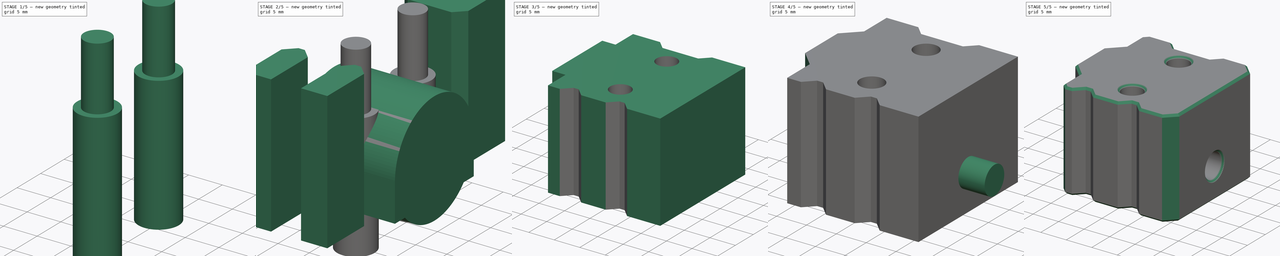
[diagram: build sequence overview — one tinted view per stage of 5, left to right]
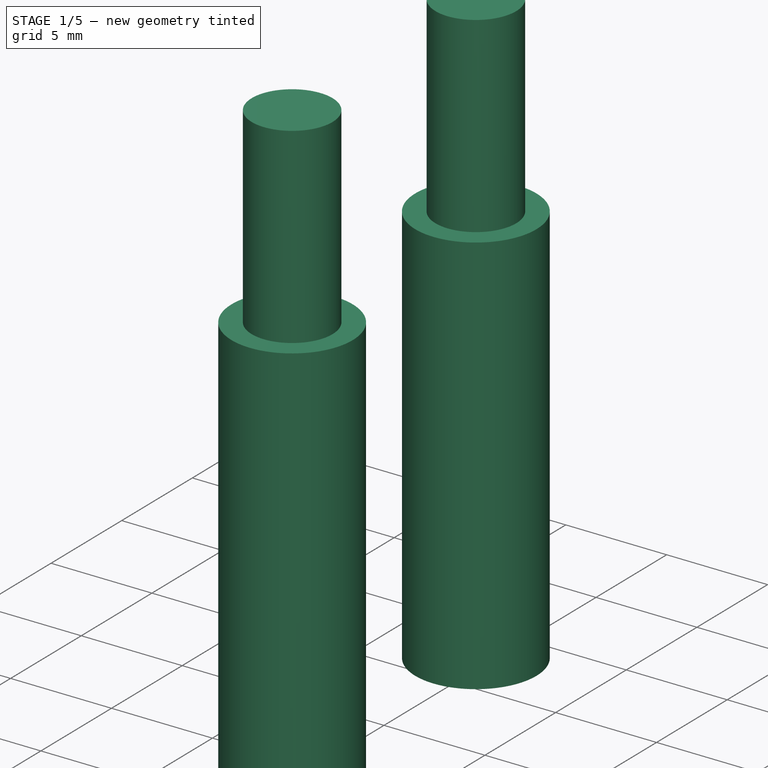
[diagram: stage 1 of 5 — iso view after this stage's code; geometry added in this stage tinted green]
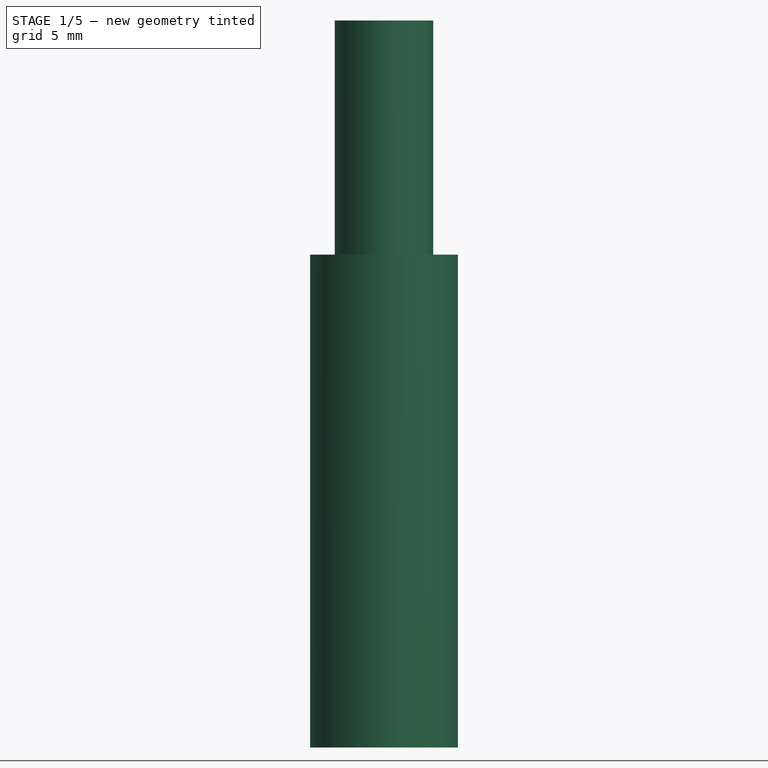
[diagram: stage 1 of 5 — front view after this stage's code; geometry added in this stage tinted green]
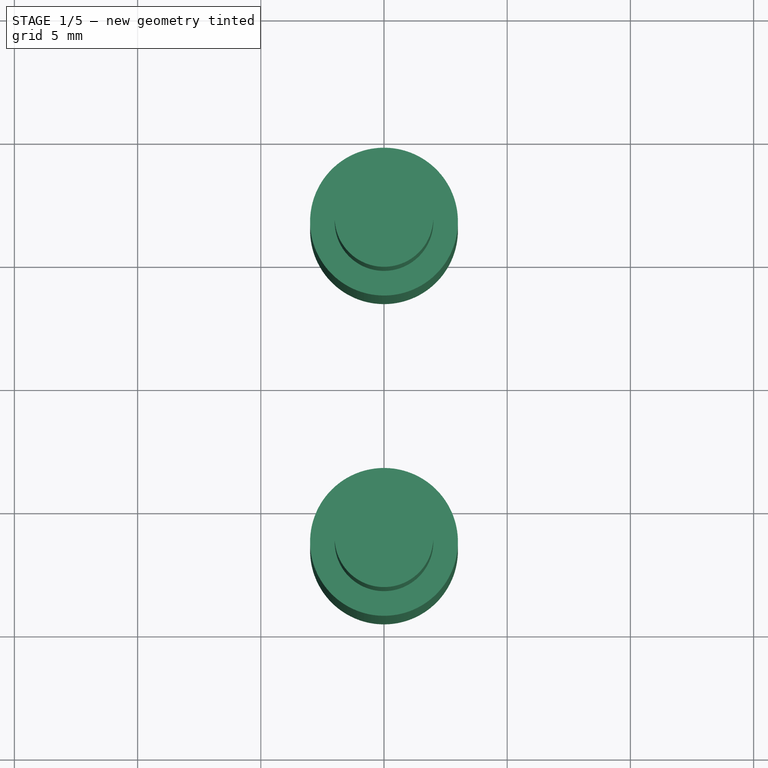
[diagram: stage 1 of 5 — top view after this stage's code; geometry added in this stage tinted green]
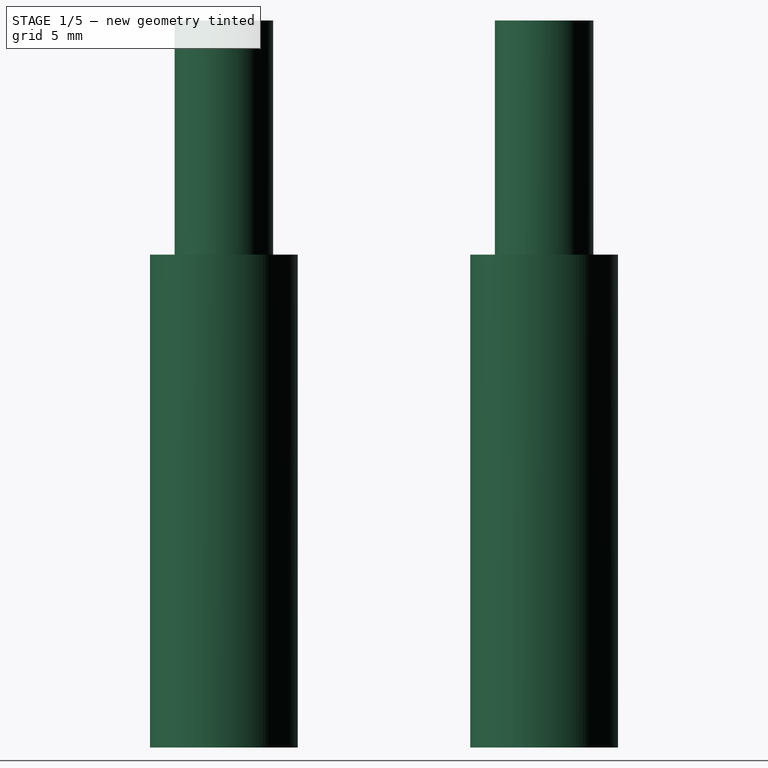
[diagram: stage 1 of 5 — right view after this stage's code; geometry added in this stage tinted green]
FCSTD DOCUMENT  (FreeCAD 0.19R24366 (Git))
Label: idler-housing-flange
License: All rights reserved
LicenseURL: http://en.wikipedia.org/wiki/All_rights_reserved
objects: Part::Cylinder×8, Part::MultiFuse×7, Part::Chamfer×7, Part::Box×6, Part::Cut×4, Part::Refine×1, PartDesign::FeatureBase×1, Sketcher::SketchObject×1, PartDesign::Pad×1, PartDesign::Body×1
note: 38 computed .brp shape members not serialized (recipe doc carries the construction recipe); baked Part::Feature solids carry a one-line shape summary decoded from their .brp

FEATURE [Part::Cylinder] Cylinder020
  Angle = 360
  AttacherType = Attacher::AttachEngine3D
  Height = 20
  Placement = pos=(15,-6.5,-6.5) rot=(0,0,1;0rad)
  Radius = 3
FEATURE [Part::Cylinder] Cylinder018
  Angle = 360
  AttacherType = Attacher::AttachEngine3D
  Height = 10
  Placement = pos=(15,-6.5,13) rot=(0,0,1;0rad)
  Radius = 2
FEATURE [Part::Cylinder] Cylinder019
  Angle = 360
  AttacherType = Attacher::AttachEngine3D
  Height = 10
  Placement = pos=(15,6.5,13) rot=(0,0,1;0rad)
  Radius = 2
FEATURE [Part::MultiFuse] Fusion013005011029006008001003
  Shapes = -> [Cylinder018,Cylinder019]
FEATURE [Part::Cylinder] Cylinder021
  Angle = 360
  AttacherType = Attacher::AttachEngine3D
  Height = 20
  Placement = pos=(15,6.5,-6.5) rot=(0,0,1;0rad)
  Radius = 3
FEATURE [Part::MultiFuse] Fusion
  Shapes = -> [Cylinder021,Cylinder020]
FEATURE [Part::MultiFuse] Fusion013005011029006008001004
  Shapes = -> [Fusion,Fusion013005011029006008001003]
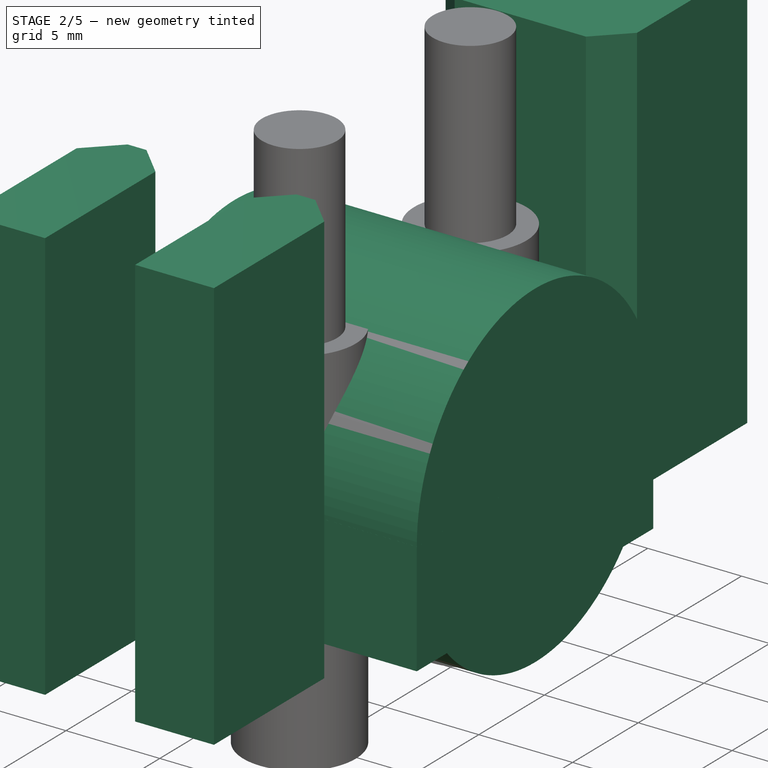
[diagram: stage 2 of 5 — iso view after this stage's code; geometry added in this stage tinted green]
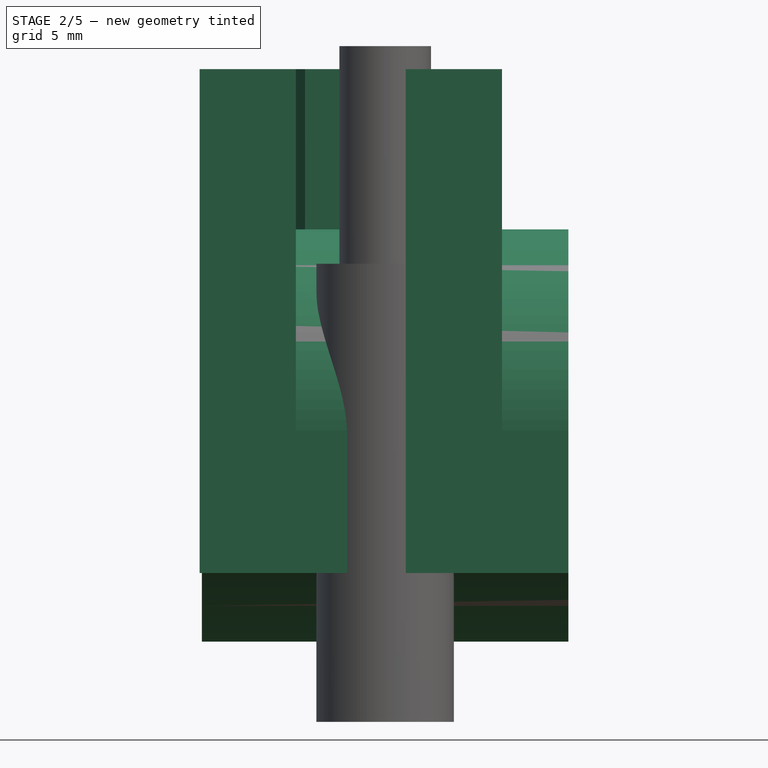
[diagram: stage 2 of 5 — front view after this stage's code; geometry added in this stage tinted green]
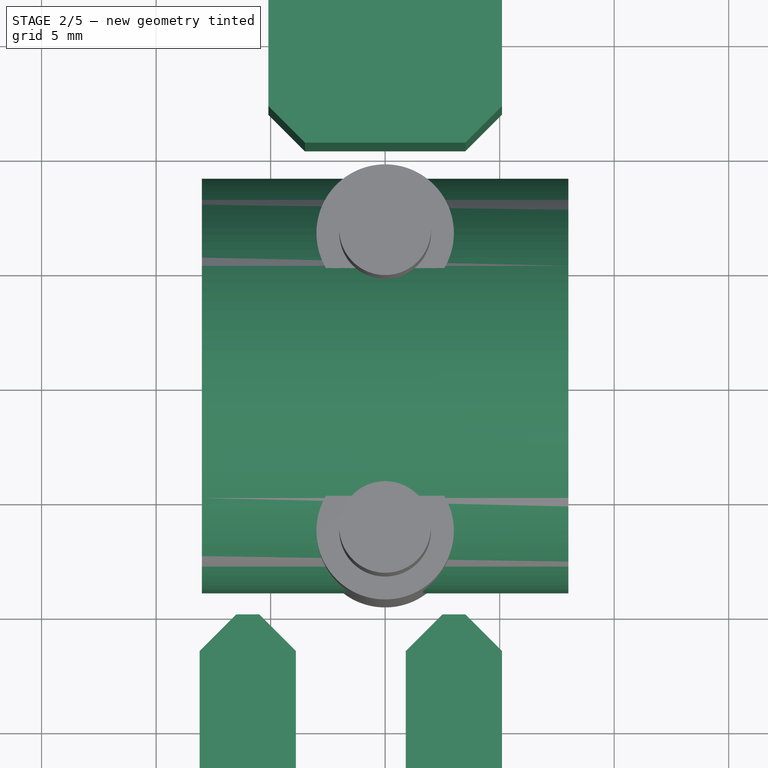
[diagram: stage 2 of 5 — top view after this stage's code; geometry added in this stage tinted green]
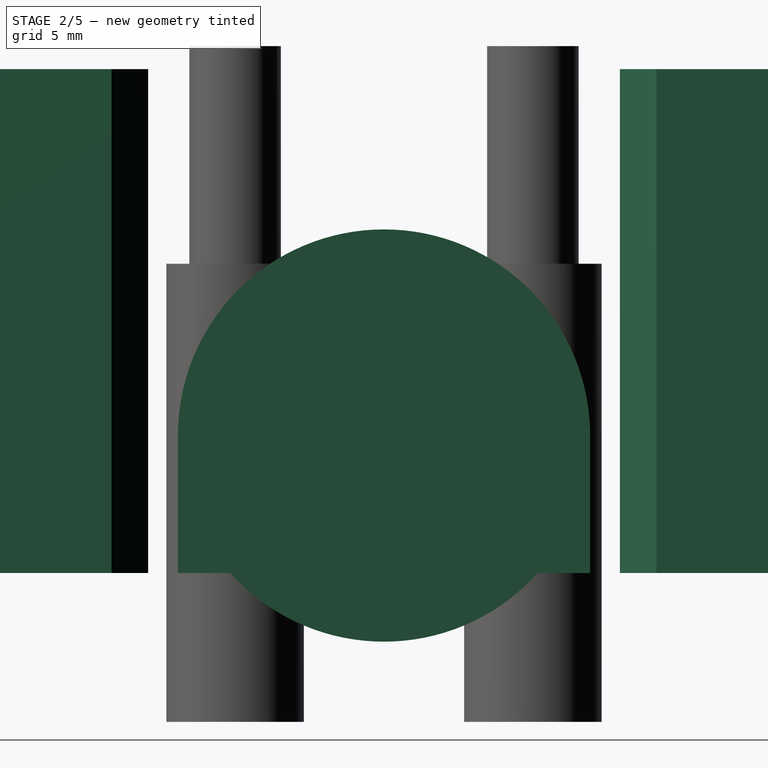
[diagram: stage 2 of 5 — right view after this stage's code; geometry added in this stage tinted green]
FEATURE [Part::Box] Box011  label="Cube011"
  AttacherType = Attacher::AttachEngine3D
  Height = 6
  Length = 16
  Placement = pos=(7,-9,0) rot=(0,0,1;0rad)
  Width = 18
FEATURE [Part::Box] Box014  label="Cube014"
  AttacherType = Attacher::AttachEngine3D
  Height = 22
  Length = 4.2
  Placement = pos=(6.9,-20.3,0) rot=(0,0,1;0rad)
  Width = 10
FEATURE [Part::Box] Box025  label="Cube023"
  AttacherType = Attacher::AttachEngine3D
  Height = 22
  Length = 4.2
  Placement = pos=(15.9,-20.3,0) rot=(0,0,1;0rad)
  Width = 10
FEATURE [Part::Box] Box013  label="Cube013"
  AttacherType = Attacher::AttachEngine3D
  Height = 22
  Length = 10.2
  Placement = pos=(9.9,10.3,0) rot=(0,0,1;0rad)
  Width = 10
FEATURE [Part::MultiFuse] Fusion013005011029006008001002
  Shapes = -> [Box013,Box014,Box025]
FEATURE [Part::Cylinder] Cylinder014
  Angle = 360
  AttacherType = Attacher::AttachEngine3D
  Height = 16
  Placement = pos=(23,0,6) rot=(0,-1,0;1.5708rad)
  Radius = 9
FEATURE [Part::Chamfer] Chamfer003068003
  Base = -> Fusion013005011029006008001002
  Edges = 6 edges r=1.6: [Edge1,Edge5,Edge15,Edge19,Edge27,Edge31]
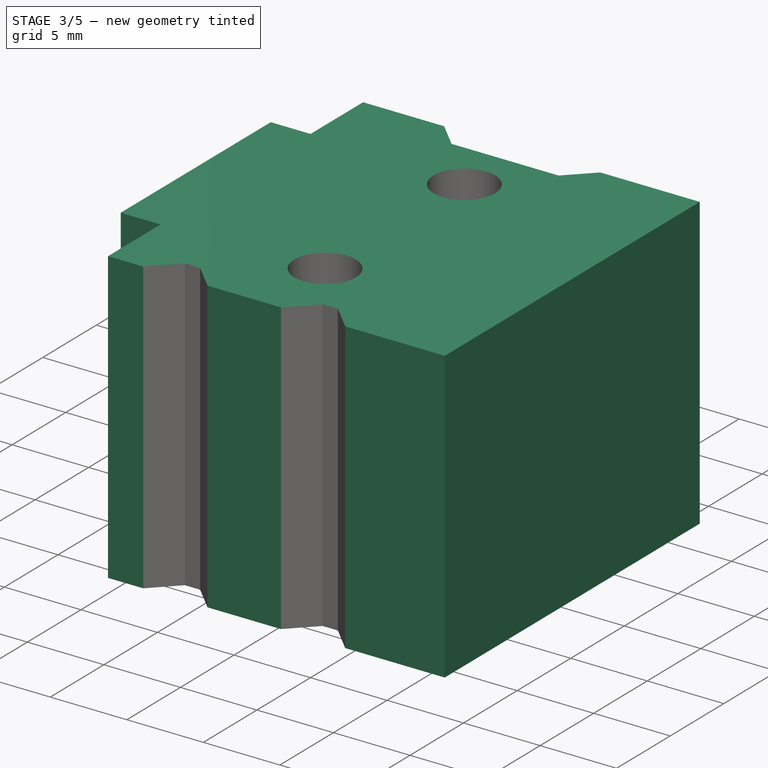
[diagram: stage 3 of 5 — iso view after this stage's code; geometry added in this stage tinted green]
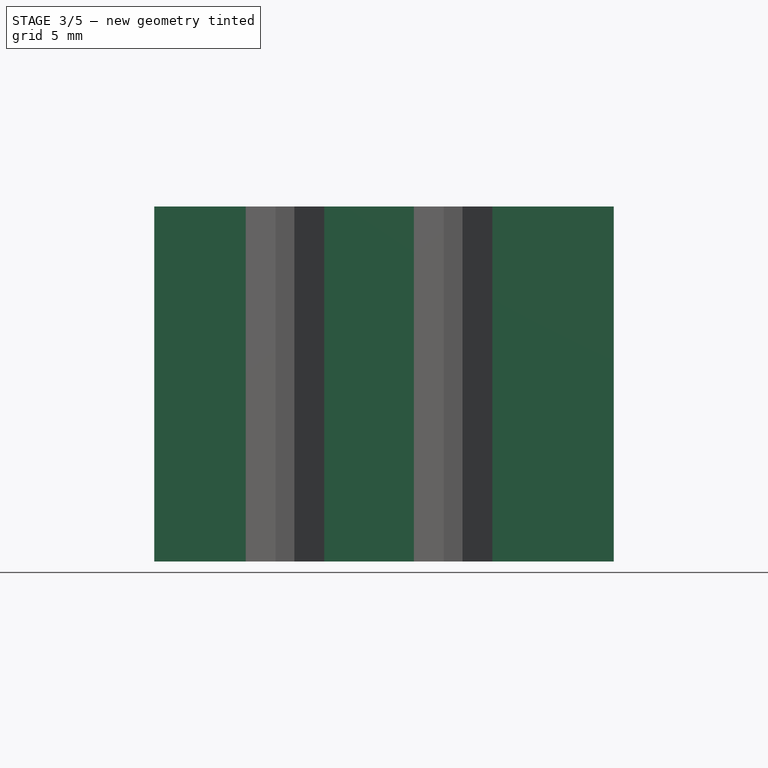
[diagram: stage 3 of 5 — front view after this stage's code; geometry added in this stage tinted green]
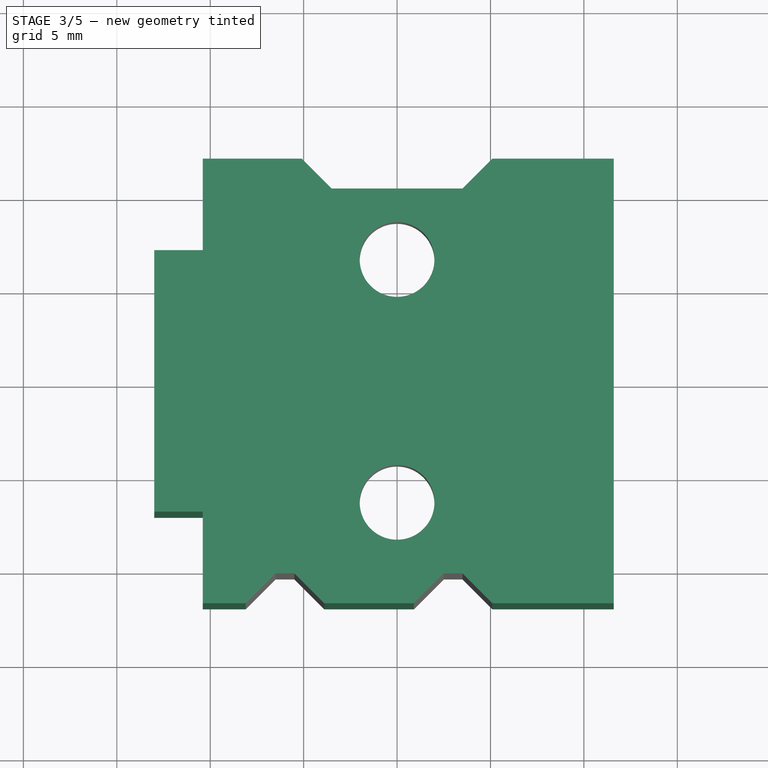
[diagram: stage 3 of 5 — top view after this stage's code; geometry added in this stage tinted green]
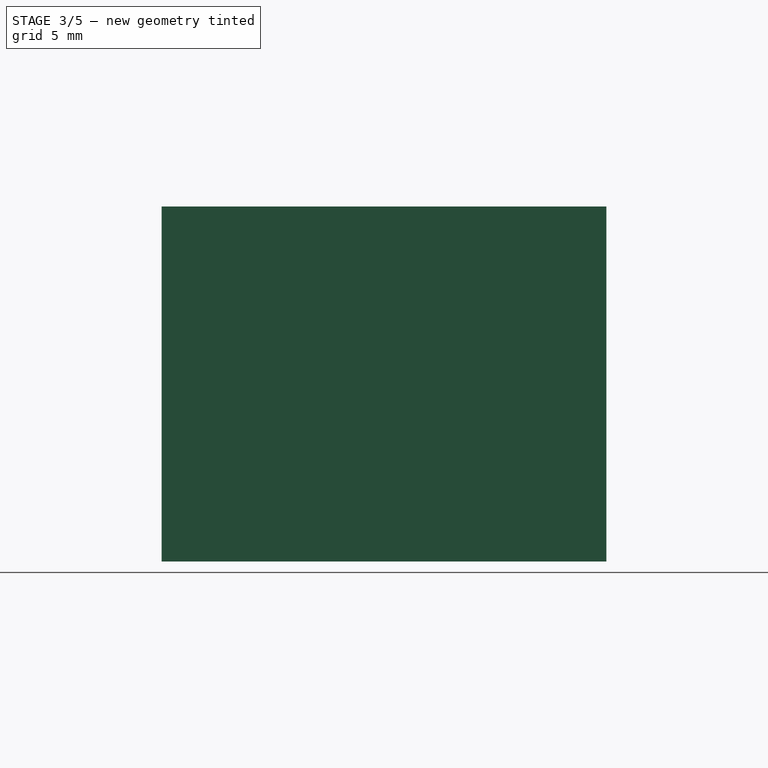
[diagram: stage 3 of 5 — right view after this stage's code; geometry added in this stage tinted green]
FEATURE [Part::Box] Box012  label="Cube012"
  AttacherType = Attacher::AttachEngine3D
  Height = 19
  Length = 22
  Placement = pos=(4.6,-11.9,0) rot=(0,0,1;0rad)
  Width = 23.8
FEATURE [Part::MultiFuse] Fusion013005011004
  Shapes = -> [Cylinder014,Box011]
FEATURE [Part::Box] Box037  label="Cube035"
  AttacherType = Attacher::AttachEngine3D
  Height = 19
  Length = 5
  Placement = pos=(2,-7,0) rot=(0,0,1;0rad)
  Width = 14
FEATURE [Part::Cut] Cut001001036003
  Base = -> Box012
  Tool = -> Chamfer003068003
FEATURE [Part::Cut] Cut001001036004
  Base = -> Cut001001036003
  Tool = -> Fusion013005011004
FEATURE [Part::Cut] Cut
  Base = -> Cut001001036004
  Tool = -> Fusion013005011029006008001004
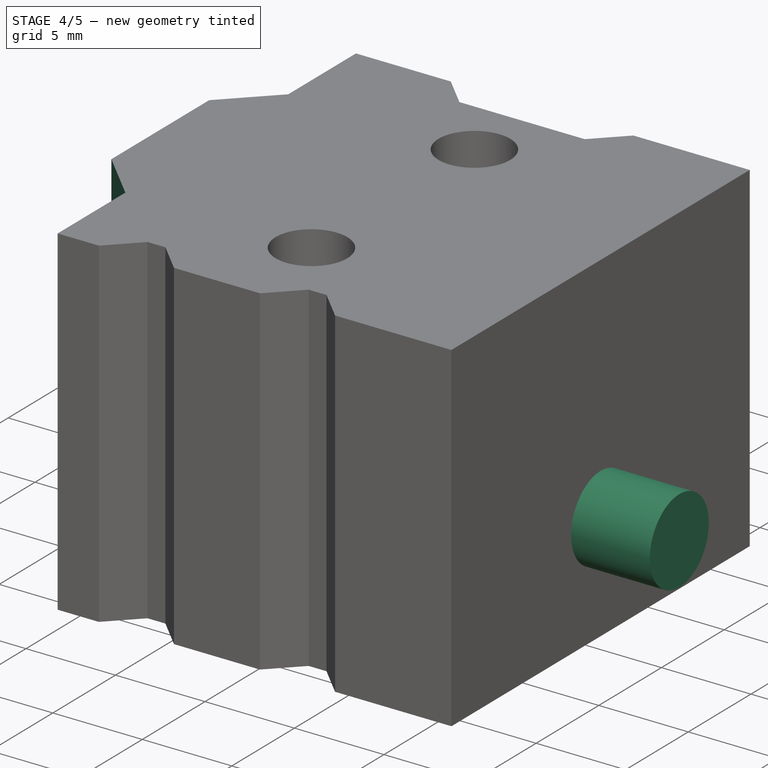
[diagram: stage 4 of 5 — iso view after this stage's code; geometry added in this stage tinted green]
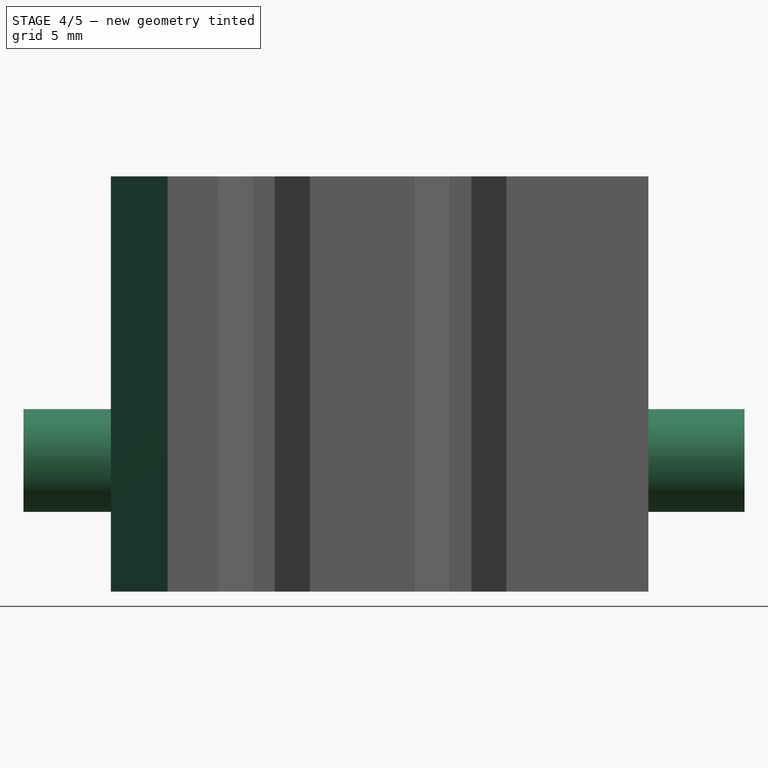
[diagram: stage 4 of 5 — front view after this stage's code; geometry added in this stage tinted green]
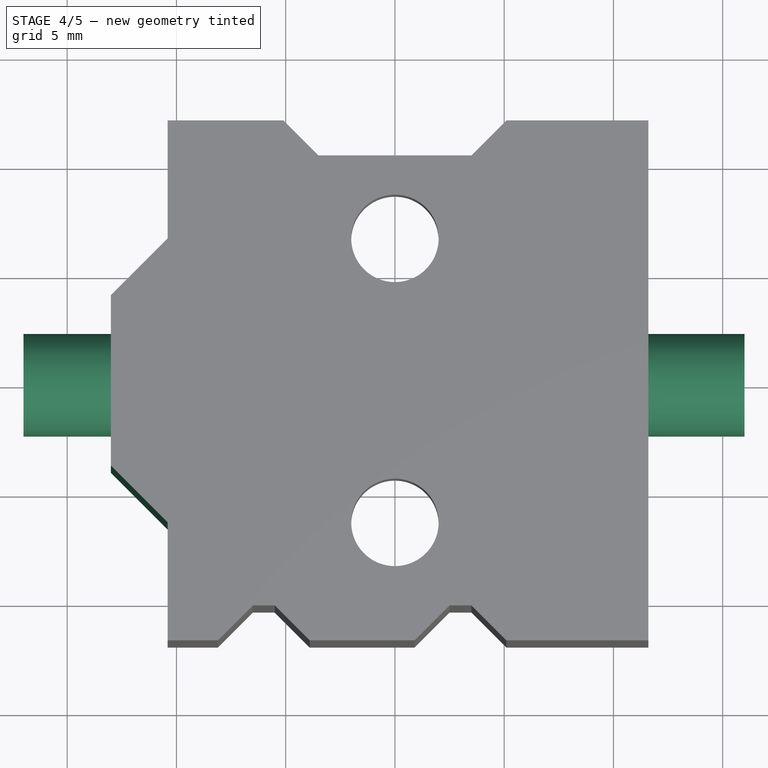
[diagram: stage 4 of 5 — top view after this stage's code; geometry added in this stage tinted green]
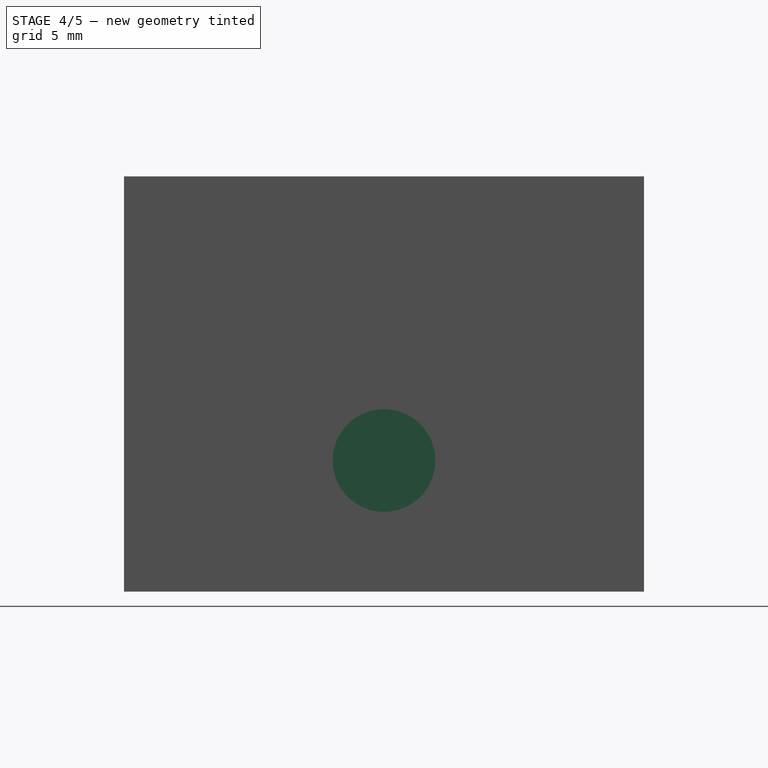
[diagram: stage 4 of 5 — right view after this stage's code; geometry added in this stage tinted green]
FEATURE [Part::Cylinder] Cylinder015
  Angle = 360
  AttacherType = Attacher::AttachEngine3D
  Height = 33
  Placement = pos=(31,0,6) rot=(0,-1,0;1.5708rad)
  Radius = 2.35
FEATURE [Part::Cylinder] Cylinder016
  Angle = 360
  AttacherType = Attacher::AttachEngine3D
  Height = 1
  Placement = pos=(23.15,0,6) rot=(0,-1,0;1.5708rad)
  Radius = 4.35
FEATURE [Part::Cylinder] Cylinder017
  Angle = 360
  AttacherType = Attacher::AttachEngine3D
  Height = 1
  Placement = pos=(7.85,0,6) rot=(0,-1,0;1.5708rad)
  Radius = 4.35
FEATURE [Part::MultiFuse] Fusion013005011005
  Shapes = -> [Cylinder017,Cylinder016]
FEATURE [Part::Chamfer] Chamfer003036
  Base = -> Fusion013005011005
  Edges = 2 edges r=0.85: [Edge3,Edge4]
FEATURE [Part::Chamfer] Chamfer003068011
  Base = -> Box037
  Edges = 2 edges r=3.1: [Edge1,Edge3]
FEATURE [Part::MultiFuse] Fusion013005011029006008001005
  Shapes = -> [Cut,Chamfer003036,Chamfer003068011]
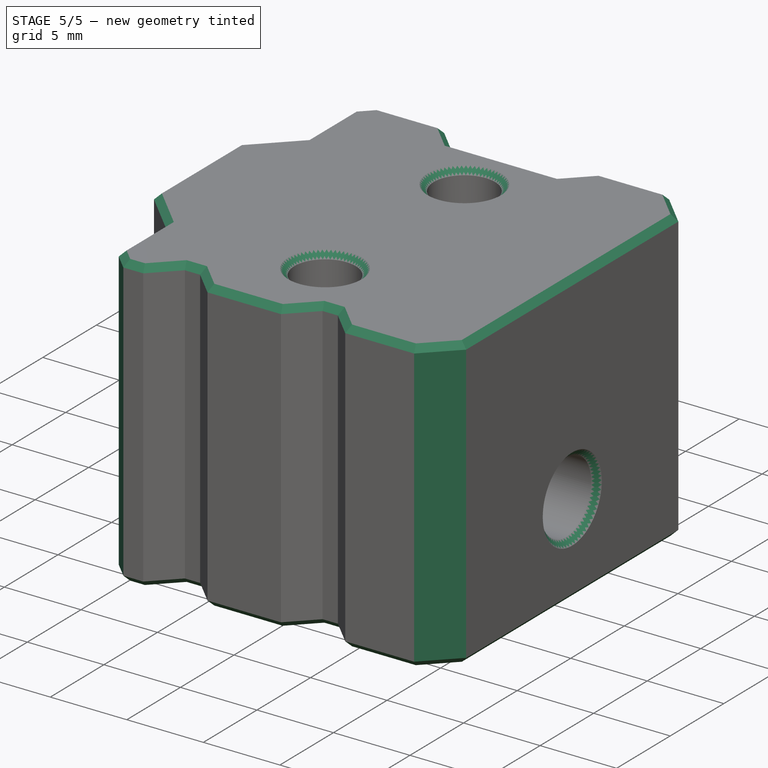
[diagram: stage 5 of 5 — iso view after this stage's code; geometry added in this stage tinted green]
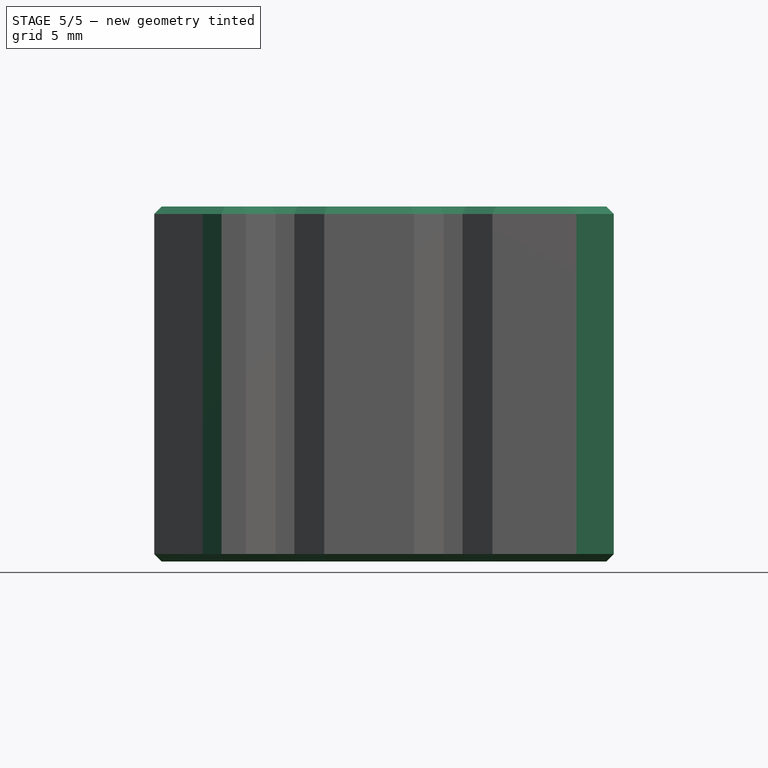
[diagram: stage 5 of 5 — front view after this stage's code; geometry added in this stage tinted green]
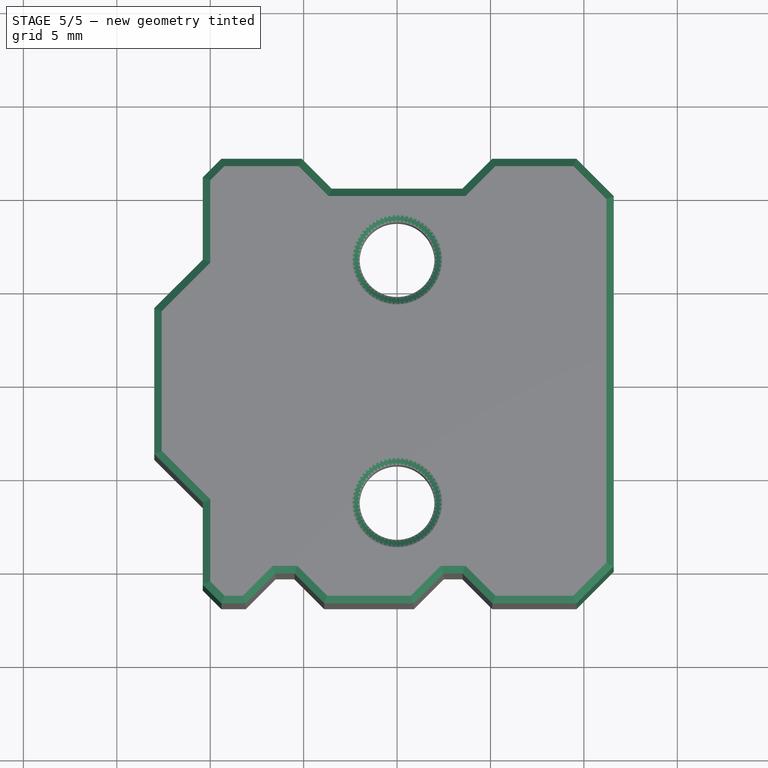
[diagram: stage 5 of 5 — top view after this stage's code; geometry added in this stage tinted green]
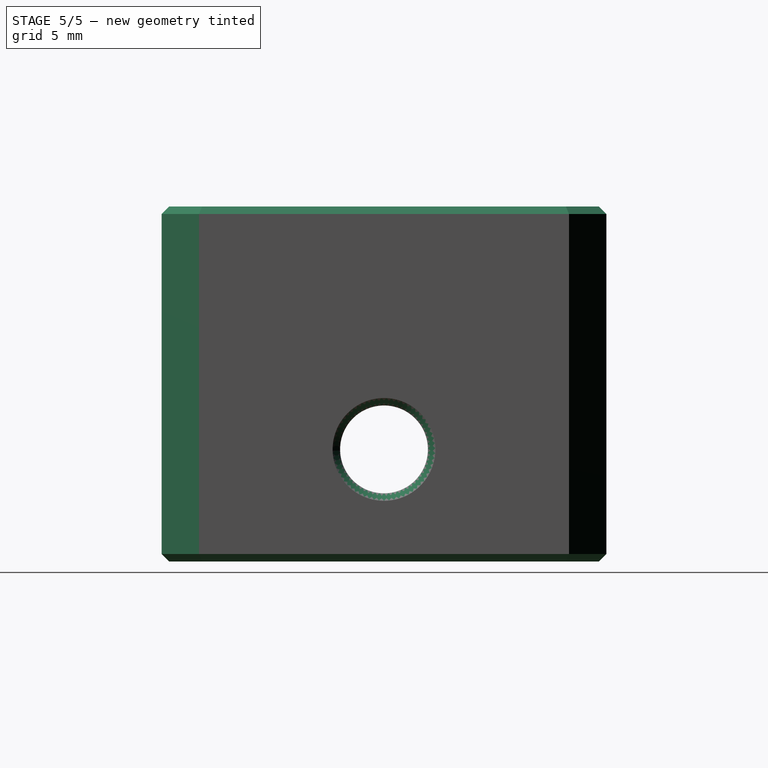
[diagram: stage 5 of 5 — right view after this stage's code; geometry added in this stage tinted green]
FEATURE [Part::Cut] Cut001001036005
  Base = -> Fusion013005011029006008001005
  Tool = -> Cylinder015
FEATURE [Part::Chamfer] Chamfer
  Base = -> Cut001001036005
  Edges = 2 edges r=2: [Edge68,Edge69]
FEATURE [Part::Chamfer] Chamfer003068012
  Base = -> Chamfer
  Edges = 2 edges r=1: [Edge46,Edge66]
FEATURE [Part::Refine] Chamfer003068012001
  Source = -> Chamfer003068012
FEATURE [Part::Chamfer] Chamfer003068012002
  Base = -> Chamfer003068012001
  Edges = 51 edges r=0.4: [Edge7,Edge9,Edge11,Edge12,Edge14,Edge15,Edge17,Edge19,Edge20,Edge22,Edge23,Edge24,Edge26,Edge28,Edge30,Edge31,Edge33,Edge35,Edge36,Edge38,Edge39,Edge41,Edge42,Edge43,Edge45,Edge46,Edge48,Edge49,Edge51,Edge53,Edge54,Edge55,Edge56,Edge58,Edge60,Edge61,Edge63,Edge64,Edge65,Edge67,Edge68,Edge70,Edge71,+8 more]
FEATURE [Part::Chamfer] Chamfer003068012003  label="r1"
  Base = -> Chamfer003068012002
  Edges = 8 edges r=0.4: [Edge135,Edge139,Edge140,Edge141,Edge152,Edge154,Edge155,Edge156]
  Placement = pos=(0,0,0) rot=(1,0,0;1.5708rad)
FEATURE [PartDesign::FeatureBase] BaseFeature
  BaseFeature = -> Chamfer003068012003
FEATURE [Sketcher::SketchObject] Sketch
  ExternalGeometry = -> [BaseFeature]
  FullyConstrained = true
  MapMode = 5
  Placement = pos=(0,0,0) rot=(1,0,0;3.14159rad)
  Support = -> [BaseFeature]
  sketch-geometry (4):
    g0: LineSegment StartX=7 StartY=-9 StartZ=0 EndX=23 EndY=-9 EndZ=0
    g1: LineSegment StartX=23 StartY=-9 StartZ=0 EndX=23 EndY=-9.3 EndZ=0
    g2: LineSegment StartX=23 StartY=-9.3 StartZ=0 EndX=7 EndY=-9.3 EndZ=0
    g3: LineSegment StartX=7 StartY=-9.3 StartZ=0 EndX=7 EndY=-9 EndZ=0
  constraints (11):
    c: Coincident(g0,g1)
    c: Coincident(g1,g2)
    c: Coincident(g2,g3)
    c: Coincident(g3,g0)
    c: Horizontal(g0)
    c: Horizontal(g2)
    c: Vertical(g1)
    c: Vertical(g3)
    c: Coincident(g0,g-3)
    c: Vertical(g1,g-4)
    c: DistanceY(g1,g1) = 0.3
FEATURE [PartDesign::Pad] Pad
  BaseFeature = -> BaseFeature
  Direction = (1,1,1)
  Length = 6
  Length2 = 100
  Profile = -> Sketch
  Reversed = true
  Type = 0
FEATURE [PartDesign::Body] Body
  BaseFeature = -> Chamfer003068012003
  Group = -> [BaseFeature,Sketch,Pad]
  Origin = -> Origin
  Placement = pos=(0,0,0) rot=(1,0,0;1.5708rad)
  Tip = -> Pad
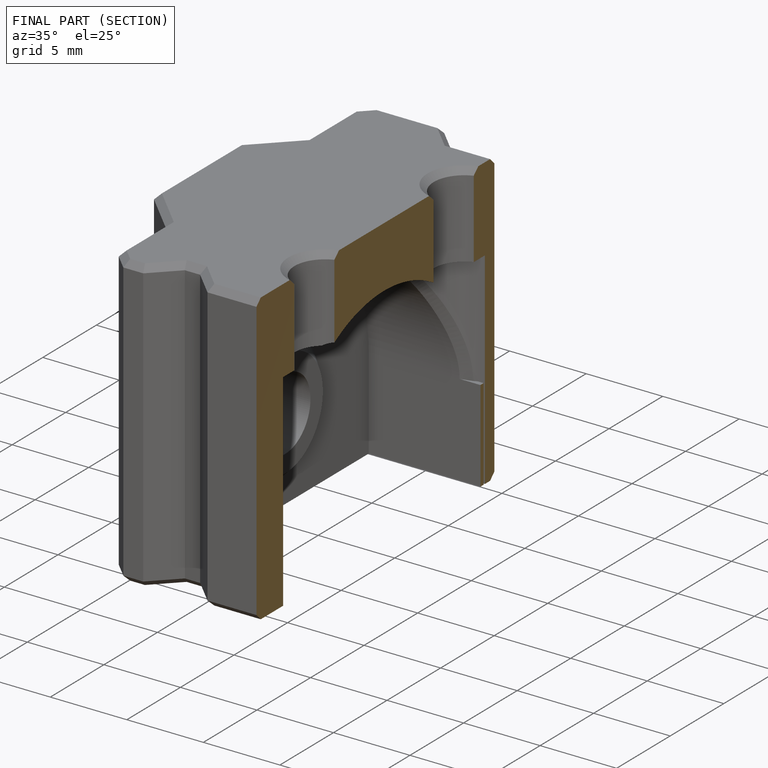
[diagram: finished part — half-section view (interior)]
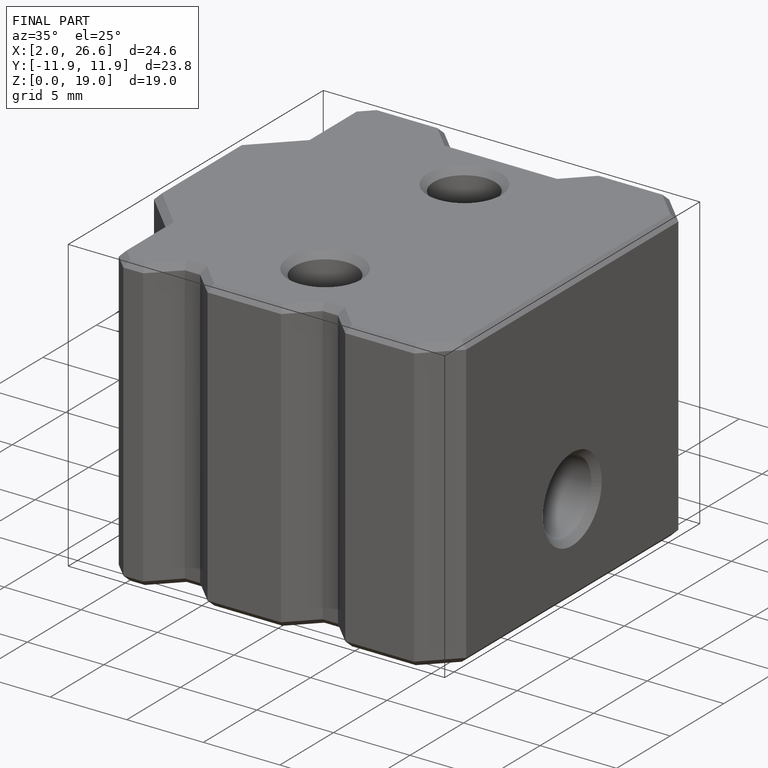
[diagram: finished part — iso view with bounding-box wireframe]
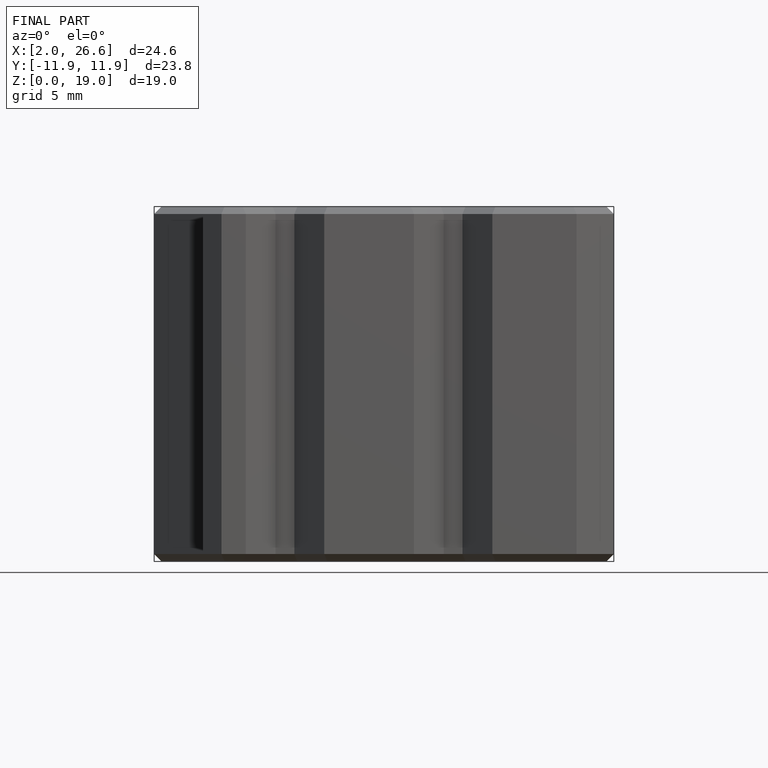
[diagram: finished part — front view with bounding-box wireframe]
